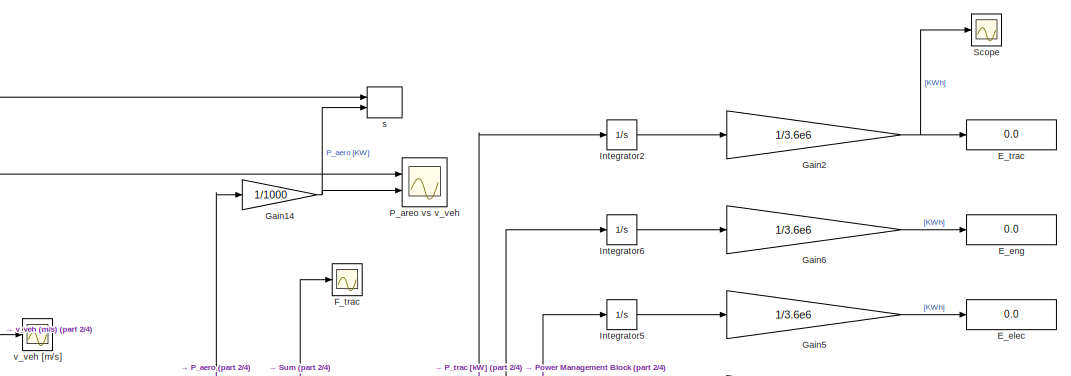
[diagram: root canvas - part 1/4, top center region]
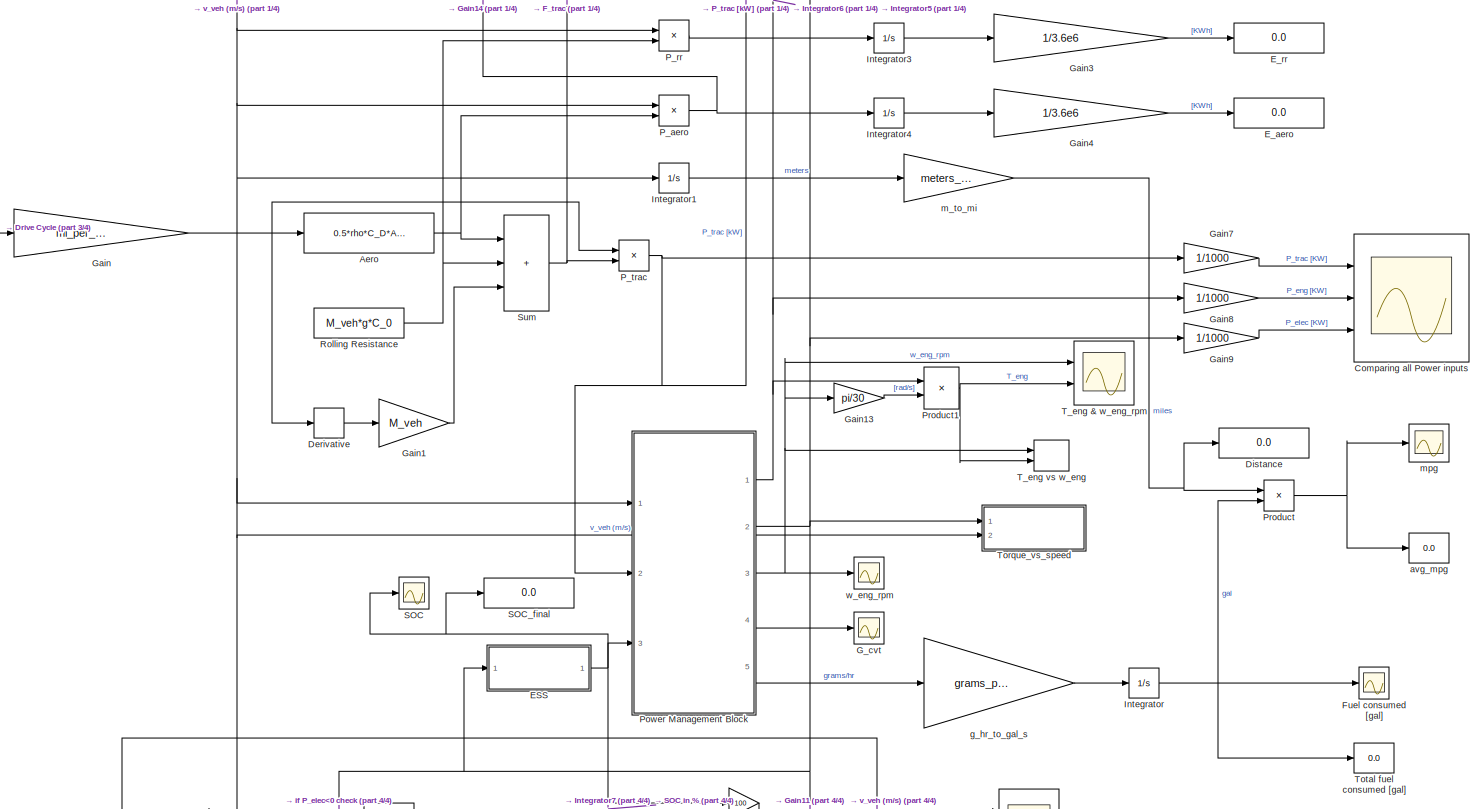
[diagram: root canvas - part 2/4, full width, middle band]
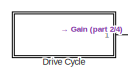
[diagram: root canvas - part 3/4, middle left region]
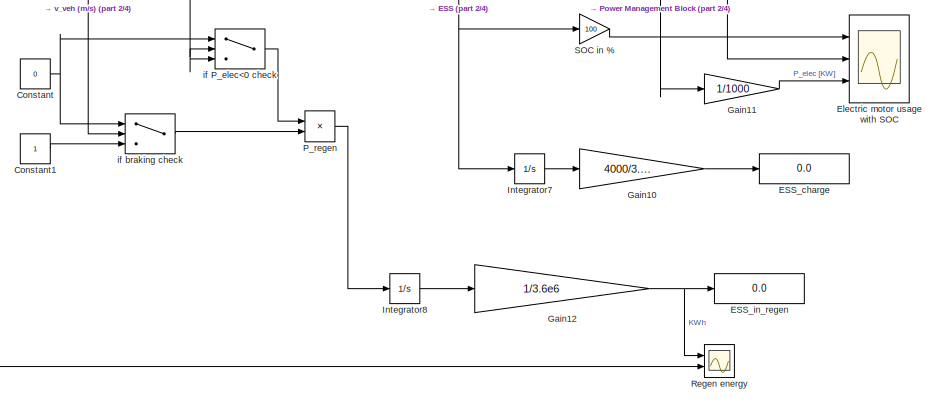
[diagram: root canvas - part 4/4, bottom center region]
MODEL slx_7052d2ca6dcd
KIND model
CONFIG AbsTol = auto
CONFIG EnableMultiTasking = off
CONFIG FixedStep = 0.1
CONFIG MaxStep = 0.2
CONFIG MinStep = 1e-20
CONFIG RelTol = 1e-3
CONFIG SampleTimeConstraint = Unconstrained
CONFIG SolverName = ode2
CONFIG StartTime = 0.0
CONFIG StopTime = 766
BLOCK [Fcn] Aero
  Expr = 0.5*rho*C_D*A_F*u(1)^2
BLOCK [Scope] Comparing all Power inputs
  Floating = off
  NumInputPorts = 3
  Ports = [3]
  ScopeSpecificationString = Simulink.scopes.TimeScopeBlockCfg('CurrentConfiguration', extmgr.ConfigurationSet(extmgr.Configuration('Core','General UI',true,'FigureColor',[0.972549019607843 0.972549019607843 0.972549019607843]),extmgr.Configuration('Core','Source UI',true),extmgr.Configuration('Sources','WiredSimulink',true,'DataLoggingVariableName','ScopeData4'),extmgr.Configuration('Visuals','Time Domain',true,'SerializedDi...<+3165ch>
BLOCK [Constant] Constant
  Value = 0
BLOCK [Constant] Constant1
BLOCK [Derivative] Derivative
BLOCK [Display] Distance
  Decimation = 1
  Ports = [1]
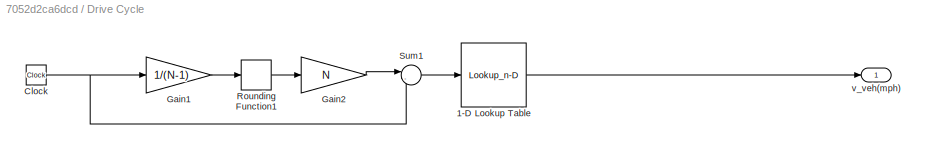
BLOCK [SubSystem] Drive Cycle
  Ports = [0, 1]
  RequestExecContextInheritance = off
BLOCK [Lookup_n-D] Drive Cycle/1-D Lookup Table
  BreakpointsForDimension1 = schedule(:,1)
  InputPortMap = u0
  InternalRulePriority = Speed
  InterpMethod = Cubic spline
  NumberOfTableDimensions = 1
  Ports = [1, 1]
  RndMeth = Simplest
  Table = schedule(:,2)
BLOCK [Clock] Drive Cycle/Clock
BLOCK [Gain] Drive Cycle/Gain1
  Gain = 1/(N-1)
BLOCK [Gain] Drive Cycle/Gain2
  Gain = N
BLOCK [Rounding] Drive Cycle/Rounding Function1
BLOCK [Sum] Drive Cycle/Sum1
  Inputs = |-+
  Ports = [2, 1]
BLOCK [Outport] Drive Cycle/v_veh(mph)
  VectorParamsAs1DForOutWhenUnconnected = off
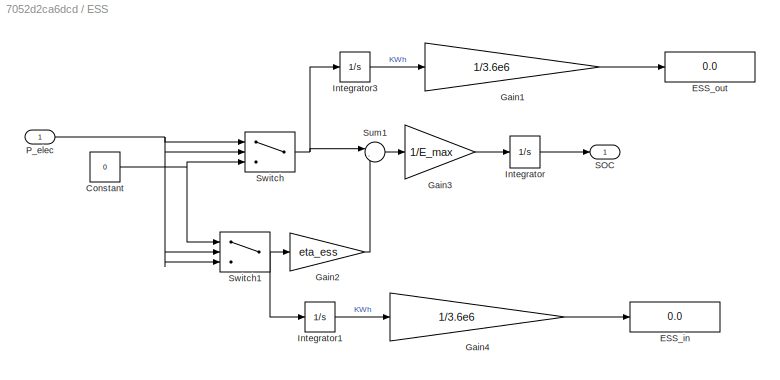
BLOCK [SubSystem] ESS
  Ports = [1, 1]
  RequestExecContextInheritance = off
BLOCK [Constant] ESS/Constant
  Value = 0
BLOCK [Display] ESS/ESS_in
  Decimation = 1
  Ports = [1]
BLOCK [Display] ESS/ESS_out
  Decimation = 1
  Ports = [1]
BLOCK [Gain] ESS/Gain1
  Gain = 1/3.6e6
BLOCK [Gain] ESS/Gain2
  Gain = eta_ess
BLOCK [Gain] ESS/Gain3
  Gain = 1/E_max
  OutDataTypeStr = fixdt('double', 'DataTypeOverride', 'Off')
BLOCK [Gain] ESS/Gain4
  Gain = 1/3.6e6
BLOCK [Integrator] ESS/Integrator
  InitialCondition = SOC_init
  LimitOutput = on
  LowerSaturationLimit = 0
  Ports = [1, 1]
  UpperSaturationLimit = 1
BLOCK [Integrator] ESS/Integrator1
  Ports = [1, 1]
BLOCK [Integrator] ESS/Integrator3
  Ports = [1, 1]
BLOCK [Inport] ESS/P_elec
BLOCK [Outport] ESS/SOC
  VectorParamsAs1DForOutWhenUnconnected = off
BLOCK [Sum] ESS/Sum1
  Inputs = |--
  Ports = [2, 1]
BLOCK [Switch] ESS/Switch
  InputSameDT = off
  OutDataTypeStr = double
  SaturateOnIntegerOverflow = off
BLOCK [Switch] ESS/Switch1
  InputSameDT = off
  OutDataTypeStr = double
  SaturateOnIntegerOverflow = off
BLOCK [Display] ESS_charge
  Decimation = 1
  Ports = [1]
BLOCK [Display] ESS_in_regen
  Decimation = 1
  Ports = [1]
BLOCK [Display] E_aero
  Decimation = 1
  Ports = [1]
BLOCK [Display] E_elec
  Decimation = 1
  Ports = [1]
BLOCK [Display] E_eng
  Decimation = 1
  Ports = [1]
BLOCK [Display] E_rr
  Decimation = 1
  Ports = [1]
BLOCK [Display] E_trac
  Decimation = 1
  Ports = [1]
BLOCK [Scope] Electric motor usage with SOC
  Floating = off
  NumInputPorts = 3
  Ports = [3]
  ScopeSpecificationString = Simulink.scopes.TimeScopeBlockCfg('CurrentConfiguration', extmgr.ConfigurationSet(extmgr.Configuration('Core','General UI',true,'FigureColor',[0.972549019607843 0.972549019607843 0.972549019607843]),extmgr.Configuration('Core','Source UI',true),extmgr.Configuration('Sources','WiredSimulink',true,'DataLoggingVariableName','ScopeData3'),extmgr.Configuration('Visuals','Time Domain',true,'SerializedDi...<+3169ch>
BLOCK [Scope] F_trac
  Floating = off
  NumInputPorts = 1
  Ports = [1]
  ScopeSpecificationString = Simulink.scopes.TimeScopeBlockCfg('CurrentConfiguration', extmgr.ConfigurationSet(extmgr.Configuration('Core','General UI',true,'FigureColor',[1 1 1]),extmgr.Configuration('Core','Source UI',true),extmgr.Configuration('Sources','WiredSimulink',true,'DataLoggingVariableName','ScopeData1'),extmgr.Configuration('Visuals','Time Domain',true,'SerializedDisplays',{struct('MinYLimReal','-3853.8029','MaxY...<+1557ch>
BLOCK [Scope] Fuel consumed [gal]
  Floating = off
  NumInputPorts = 1
  Ports = [1]
  ScopeSpecificationString = Simulink.scopes.TimeScopeBlockCfg('CurrentConfiguration', extmgr.ConfigurationSet(extmgr.Configuration('Core','General UI',true,'FigureColor',[0.972549019607843 0.972549019607843 0.972549019607843]),extmgr.Configuration('Core','Source UI',true),extmgr.Configuration('Sources','WiredSimulink',true,'DataLoggingVariableName','ScopeData2'),extmgr.Configuration('Visuals','Time Domain',true,'SerializedDi...<+1639ch>
BLOCK [Scope] G_cvt
  Floating = off
  NumInputPorts = 1
  Ports = [1]
  ScopeSpecificationString = Simulink.scopes.TimeScopeBlockCfg('CurrentConfiguration', extmgr.ConfigurationSet(extmgr.Configuration('Core','General UI',true,'FigureColor',[0.972549019607843 0.972549019607843 0.972549019607843]),extmgr.Configuration('Core','Source UI',true),extmgr.Configuration('Sources','WiredSimulink',true,'DataLoggingVariableName','ScopeData4'),extmgr.Configuration('Visuals','Time Domain',true,'SerializedDi...<+1691ch>
BLOCK [Gain] Gain
  Gain = mi_per_hr_to_m_per_s
BLOCK [Gain] Gain1
  Gain = M_veh
BLOCK [Gain] Gain10
  Gain = 4000/3.6e6
BLOCK [Gain] Gain11
  Gain = 1/1000
BLOCK [Gain] Gain12
  Gain = 1/3.6e6
BLOCK [Gain] Gain13
  Gain = pi/30
BLOCK [Gain] Gain14
  Gain = 1/1000
BLOCK [Gain] Gain2
  Gain = 1/3.6e6
BLOCK [Gain] Gain3
  Gain = 1/3.6e6
BLOCK [Gain] Gain4
  Gain = 1/3.6e6
BLOCK [Gain] Gain5
  Gain = 1/3.6e6
BLOCK [Gain] Gain6
  Gain = 1/3.6e6
BLOCK [Gain] Gain7
  Gain = 1/1000
BLOCK [Gain] Gain8
  Gain = 1/1000
BLOCK [Gain] Gain9
  Gain = 1/1000
BLOCK [Integrator] Integrator
  Ports = [1, 1]
BLOCK [Integrator] Integrator1
  Ports = [1, 1]
BLOCK [Integrator] Integrator2
  Ports = [1, 1]
BLOCK [Integrator] Integrator3
  Ports = [1, 1]
BLOCK [Integrator] Integrator4
  Ports = [1, 1]
BLOCK [Integrator] Integrator5
  Ports = [1, 1]
BLOCK [Integrator] Integrator6
  Ports = [1, 1]
BLOCK [Integrator] Integrator7
  Ports = [1, 1]
BLOCK [Integrator] Integrator8
  Ports = [1, 1]
BLOCK [Product] P_aero 
  Ports = [2, 1]
BLOCK [Scope] P_areo vs v_veh
  Floating = off
  NumInputPorts = 2
  Ports = [2]
  ScopeSpecificationString = Simulink.scopes.TimeScopeBlockCfg('CurrentConfiguration', extmgr.ConfigurationSet(extmgr.Configuration('Core','General UI',true,'FigureColor',[0.972549019607843 0.972549019607843 0.972549019607843]),extmgr.Configuration('Core','Source UI',true),extmgr.Configuration('Sources','WiredSimulink',true,'DataLoggingVariableName','ScopeData3'),extmgr.Configuration('Visuals','Time Domain',true,'SerializedDi...<+2378ch>
BLOCK [Product] P_regen
  Ports = [2, 1]
BLOCK [Product] P_rr 
  Ports = [2, 1]
BLOCK [Product] P_trac
  Ports = [2, 1]
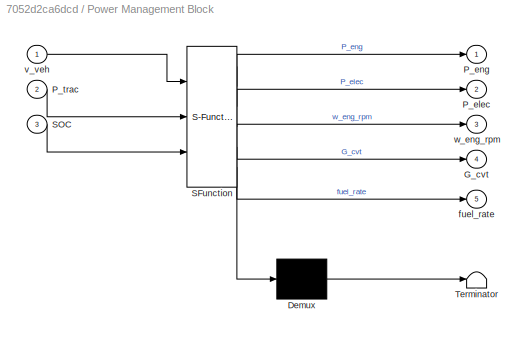
BLOCK [SubSystem] Power Management Block
  ErrorFcn = Stateflow.Translate.translate
  PermitHierarchicalResolution = ExplicitOnly
  Ports = [3, 5]
  RequestExecContextInheritance = off
  SFBlockType = MATLAB Function
  TreatAsAtomicUnit = on
BLOCK [Demux] Power Management Block/ Demux 
  Outputs = 1
  Ports = [1, 1]
BLOCK [S-Function] Power Management Block/ SFunction 
  EnableBusSupport = on
  FunctionName = sf_sfun
  Parameters = eng_map,param
  PortCounts = [3 6]
  Ports = [3, 6]
  SFcnIsStateOwnerBlock = off
  SFunctionDeploymentMode = off
  Tag = Stateflow S-Function 2
BLOCK [Terminator] Power Management Block/ Terminator 
BLOCK [Outport] Power Management Block/G_cvt
  Port = 4
  VectorParamsAs1DForOutWhenUnconnected = off
BLOCK [Outport] Power Management Block/P_elec
  Port = 2
  VectorParamsAs1DForOutWhenUnconnected = off
BLOCK [Outport] Power Management Block/P_eng
  VectorParamsAs1DForOutWhenUnconnected = off
BLOCK [Inport] Power Management Block/P_trac
  Port = 2
BLOCK [Inport] Power Management Block/SOC
  Port = 3
BLOCK [Outport] Power Management Block/fuel_rate
  Port = 5
  VectorParamsAs1DForOutWhenUnconnected = off
BLOCK [Inport] Power Management Block/v_veh
BLOCK [Outport] Power Management Block/w_eng_rpm
  Port = 3
  VectorParamsAs1DForOutWhenUnconnected = off
BLOCK [Product] Product
  Inputs = */
  Ports = [2, 1]
BLOCK [Product] Product1
  Inputs = */
  Ports = [2, 1]
BLOCK [Scope] Regen energy
  Floating = off
  NumInputPorts = 2
  Ports = [2]
  ScopeSpecificationString = Simulink.scopes.TimeScopeBlockCfg('CurrentConfiguration', extmgr.ConfigurationSet(extmgr.Configuration('Core','General UI',true,'FigureColor',[0.972549019607843 0.972549019607843 0.972549019607843]),extmgr.Configuration('Core','Source UI',true),extmgr.Configuration('Sources','WiredSimulink',true,'DataLoggingVariableName','ScopeData2'),extmgr.Configuration('Visuals','Time Domain',true,'SerializedDi...<+2370ch>
BLOCK [Constant] Rolling Resistance
  Value = M_veh*g*C_0
BLOCK [Scope] SOC
  Floating = off
  NumInputPorts = 1
  Ports = [1]
  ScopeSpecificationString = Simulink.scopes.TimeScopeBlockCfg('CurrentConfiguration', extmgr.ConfigurationSet(extmgr.Configuration('Core','General UI',true,'FigureColor',[0.972549019607843 0.972549019607843 0.972549019607843]),extmgr.Configuration('Core','Source UI',true),extmgr.Configuration('Sources','WiredSimulink',true,'DataLoggingVariableName','ScopeData1'),extmgr.Configuration('Visuals','Time Domain',true,'SerializedDi...<+1639ch>
BLOCK [Gain] SOC in %
  Gain = 100
BLOCK [Display] SOC_final
  Decimation = 1
  Ports = [1]
BLOCK [Scope] Scope
  Floating = off
  NumInputPorts = 1
  Ports = [1]
  ScopeSpecificationString = Simulink.scopes.TimeScopeBlockCfg('CurrentConfiguration', extmgr.ConfigurationSet(extmgr.Configuration('Core','General UI',true,'FigureColor',[1 1 1]),extmgr.Configuration('Core','Source UI',true),extmgr.Configuration('Sources','WiredSimulink',true,'DataLoggingVariableName','ScopeData2'),extmgr.Configuration('Visuals','Time Domain',true,'SerializedDisplays',{struct('MinYLimReal','-0.25406','MaxYLi...<+1614ch>
BLOCK [Sum] Sum
  IconShape = rectangular
  Inputs = +++
  Ports = [3, 1]
BLOCK [Scope] T_eng & w_eng_rpm
  Floating = off
  NumInputPorts = 2
  Ports = [2]
  ScopeSpecificationString = Simulink.scopes.TimeScopeBlockCfg('CurrentConfiguration', extmgr.ConfigurationSet(extmgr.Configuration('Core','General UI',true,'FigureColor',[0.972549019607843 0.972549019607843 0.972549019607843]),extmgr.Configuration('Core','Source UI',true),extmgr.Configuration('Sources','WiredSimulink',true,'DataLoggingVariableName','ScopeData5'),extmgr.Configuration('Visuals','Time Domain',true,'SerializedDi...<+2404ch>
BLOCK [Record] T_eng vs w_eng
  CompatibilityTag = XY
  FileSettingsInternal = {"entries":[{"content":{"excelSettings":{"content":{},"type":"Streamout.ExcelSettings"}},"type":"Streamout.FileSettingStorage","uuid":"e8810c02-a781-440f-a0aa-6ea0337eb554"}],"packageUris":["http://schema.mathworks.com/mf0/streamout_blocks/R2020a"],"version":"1.0"}
  Layout = [1 1]
  Ports = [2]
  SignalsInternal = {"entries":[{"content":{"signals":[{"content":{"blockPath":["first/T_eng vs w_eng"],"channel":[],"dimensions":[1],"domain":"first/T_eng vs w_eng","lineColor":"#a2142f","plots":[],"port":1,"sid":[""],"signalID":353,"signalName":"w_eng_rpm"},"type":"RecordBlkView.Signal","uuid":"3905639b-b552-46c2-b388-1891f00bc392"},{"content":{"blockPath":["first/T_eng vs w_eng"],"channel":[],"dimensions":[1],"dom...<+371ch>
  VisualizationBindings = {"xyplotplugin":{"info":[{"series":[],"subplotID":1}]}}
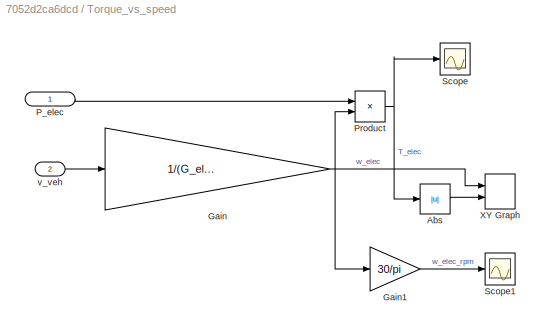
BLOCK [SubSystem] Torque_vs_speed
  Ports = [2]
  RequestExecContextInheritance = off
BLOCK [Abs] Torque_vs_speed/Abs
  SaturateOnIntegerOverflow = off
BLOCK [Gain] Torque_vs_speed/Gain
  Gain = 1/(G_elec * G_diff * r_wheel)
BLOCK [Gain] Torque_vs_speed/Gain1
  Gain = 30/pi
BLOCK [Inport] Torque_vs_speed/P_elec
BLOCK [Product] Torque_vs_speed/Product
  Inputs = */
  Ports = [2, 1]
BLOCK [Scope] Torque_vs_speed/Scope
  Floating = off
  NumInputPorts = 1
  Ports = [1]
  ScopeSpecificationString = Simulink.scopes.TimeScopeBlockCfg('CurrentConfiguration', extmgr.ConfigurationSet(extmgr.Configuration('Core','General UI',true,'FigureColor',[1 1 1]),extmgr.Configuration('Core','Source UI',true),extmgr.Configuration('Sources','WiredSimulink',true,'DataLoggingVariableName','ScopeData1'),extmgr.Configuration('Visuals','Time Domain',true,'SerializedDisplays',{struct('MinYLimReal','-286.29412','MaxY...<+1650ch>
BLOCK [Scope] Torque_vs_speed/Scope1
  Floating = off
  NumInputPorts = 1
  Ports = [1]
  ScopeSpecificationString = Simulink.scopes.TimeScopeBlockCfg('CurrentConfiguration', extmgr.ConfigurationSet(extmgr.Configuration('Core','General UI',true,'FigureColor',[1 1 1]),extmgr.Configuration('Core','Source UI',true),extmgr.Configuration('Sources','WiredSimulink',true,'DataLoggingVariableName','ScopeData3'),extmgr.Configuration('Visuals','Time Domain',true,'SerializedDisplays',{struct('MinYLimReal','-600.59495','MaxY...<+1633ch>
BLOCK [Record] Torque_vs_speed/XY Graph
  CompatibilityTag = XY
  FileSettingsInternal = {"entries":[{"content":{"excelSettings":{"content":{},"type":"Streamout.ExcelSettings"}},"type":"Streamout.FileSettingStorage","uuid":"02627308-9a79-425d-aeec-e9e94ddd7ae0"}],"packageUris":["http://schema.mathworks.com/mf0/streamout_blocks/R2020a"],"version":"1.0"}
  Layout = [1 1]
  Ports = [2]
  SignalsInternal = {"entries":[{"content":{"signals":[{"content":{"blockPath":["first/Torque_vs_speed/XY Graph"],"channel":[],"dimensions":[1],"domain":"first/Torque_vs_speed/XY Graph","lineColor":"#a2142f","plots":[1],"port":1,"sid":[""],"signalID":361,"signalName":"w_elec"},"type":"RecordBlkView.Signal","uuid":"d0663536-23cd-4689-8d14-dfc1729d4cf1"},{"content":{"blockPath":["first/Torque_vs_speed/XY Graph"],"chann...<+408ch>
  VisualizationBindings = {"xyplotplugin":{"info":[{"series":[{"bindingParametersList":[{"parameter":"X-Axis","signalID":361,"signalName":"w_elec"},{"parameter":"Y-Axis","signalID":365,"signalName":"Abs"}],"seriesID":10917}],"subplotID":1}]}}
  st = -1
BLOCK [Inport] Torque_vs_speed/v_veh
  Port = 2
BLOCK [Display] Total fuel consumed [gal]
  Decimation = 1
  Ports = [1]
BLOCK [Display] avg_mpg
  Decimation = 1
  Ports = [1]
BLOCK [Gain] g_hr_to_gal_s
  Gain = grams_per_hr_to_gal_per_s
BLOCK [Switch] if P_elec<0 check
  InputSameDT = off
  OutDataTypeStr = double
  SaturateOnIntegerOverflow = off
BLOCK [Switch] if braking check
  InputSameDT = off
  OutDataTypeStr = double
  SaturateOnIntegerOverflow = off
BLOCK [Gain] m_to_mi
  Gain = meters_to_mi
BLOCK [Scope] mpg
  Floating = off
  NumInputPorts = 1
  Ports = [1]
  ScopeSpecificationString = Simulink.scopes.TimeScopeBlockCfg('CurrentConfiguration', extmgr.ConfigurationSet(extmgr.Configuration('Core','General UI',true,'FigureColor',[0.972549019607843 0.972549019607843 0.972549019607843]),extmgr.Configuration('Core','Source UI',true),extmgr.Configuration('Sources','WiredSimulink',true,'DataLoggingVariableName','ScopeData1'),extmgr.Configuration('Visuals','Time Domain',true,'SerializedDi...<+1655ch>
BLOCK [Record] s
  CompatibilityTag = XY
  FileSettingsInternal = {"entries":[{"content":{"excelSettings":{"content":{},"type":"Streamout.ExcelSettings"}},"type":"Streamout.FileSettingStorage","uuid":"82f50792-d557-49ae-9ff4-48ee91707643"}],"packageUris":["http://schema.mathworks.com/mf0/streamout_blocks/R2020a"],"version":"1.0"}
  Layout = [1 1]
  Ports = [2]
  SignalsInternal = {"entries":[{"content":{"signals":[{"content":{"blockPath":["first/s"],"channel":[],"dimensions":[1],"domain":"first/s","lineColor":"#64d413","plots":[],"port":1,"sid":[""],"signalID":369,"signalName":"v_veh (m/s)"},"type":"RecordBlkView.Signal","uuid":"3b5b11c4-51da-4adc-b968-fa1dcc70d426"},{"content":{"blockPath":["first/s"],"channel":[],"dimensions":[1],"domain":"first/s","lineColor":"#ff13a6",...<+327ch>
  VisualizationBindings = {"xyplotplugin":{"info":[{"series":[],"subplotID":1}]}}
BLOCK [Scope] v_veh [m//s]
  Floating = off
  NumInputPorts = 1
  Ports = [1]
  ScopeSpecificationString = Simulink.scopes.TimeScopeBlockCfg('CurrentConfiguration', extmgr.ConfigurationSet(extmgr.Configuration('Core','General UI',true,'FigureColor',[0.972549019607843 0.972549019607843 0.972549019607843]),extmgr.Configuration('Core','Source UI',true),extmgr.Configuration('Sources','WiredSimulink',true,'DataLoggingVariableName','ScopeData1'),extmgr.Configuration('Visuals','Time Domain',true,'SerializedDi...<+1645ch>
BLOCK [Scope] w_eng_rpm
  Floating = off
  NumInputPorts = 1
  Ports = [1]
  ScopeSpecificationString = Simulink.scopes.TimeScopeBlockCfg('CurrentConfiguration', extmgr.ConfigurationSet(extmgr.Configuration('Core','General UI',true,'FigureColor',[0.972549019607843 0.972549019607843 0.972549019607843]),extmgr.Configuration('Core','Source UI',true),extmgr.Configuration('Sources','WiredSimulink',true,'DataLoggingVariableName','ScopeData3'),extmgr.Configuration('Visuals','Time Domain',true,'SerializedDi...<+1675ch>
NET Aero:1 -> P_aero :2, Sum:1
LINE Constant1:1 -> if braking check:3
NET Constant:1 -> if P_elec<0 check:1, if braking check:1
LINE Derivative:1 -> Gain1:1
LINE Drive Cycle/1-D Lookup Table:1 -> Drive Cycle/v_veh(mph):1
NET Drive Cycle/Clock:1 -> Drive Cycle/Gain1:1, Drive Cycle/Sum1:2
LINE Drive Cycle/Gain1:1 -> Drive Cycle/Rounding Function1:1
LINE Drive Cycle/Gain2:1 -> Drive Cycle/Sum1:1
LINE Drive Cycle/Rounding Function1:1 -> Drive Cycle/Gain2:1
LINE Drive Cycle/Sum1:1 -> Drive Cycle/1-D Lookup Table:1
LINE Drive Cycle:1 -> Gain:1
NET ESS/Constant:1 -> ESS/Switch1:1, ESS/Switch:3
LINE ESS/Gain1:1 -> ESS/ESS_out:1
LINE ESS/Gain2:1 -> ESS/Sum1:2
LINE ESS/Gain3:1 -> ESS/Integrator:1
LINE ESS/Gain4:1 -> ESS/ESS_in:1
LINE ESS/Integrator1:1 -> ESS/Gain4:1
LINE ESS/Integrator3:1 -> ESS/Gain1:1
LINE ESS/Integrator:1 -> ESS/SOC:1
NET ESS/P_elec:1 -> ESS/Switch1:2, ESS/Switch1:3, ESS/Switch:1, ESS/Switch:2
LINE ESS/Sum1:1 -> ESS/Gain3:1
NET ESS/Switch1:1 -> ESS/Gain2:1, ESS/Integrator1:1
NET ESS/Switch:1 -> ESS/Integrator3:1, ESS/Sum1:1
NET ESS:1 -> Integrator7:1, Power Management Block:3, SOC in %:1, SOC:1, SOC_final:1
LINE Gain10:1 -> ESS_charge:1
LINE Gain11:1 -> Electric motor usage with SOC:3
NET Gain12:1 -> ESS_in_regen:1, Regen energy:1
LINE Gain13:1 -> Product1:2
NET Gain14:1 -> P_areo vs v_veh:2, s:2
LINE Gain1:1 -> Sum:3
NET Gain2:1 -> E_trac:1, Scope:1
LINE Gain3:1 -> E_rr:1
LINE Gain4:1 -> E_aero:1
LINE Gain5:1 -> E_elec:1
LINE Gain6:1 -> E_eng:1
LINE Gain7:1 -> Comparing all Power inputs:1
LINE Gain8:1 -> Comparing all Power inputs:2
LINE Gain9:1 -> Comparing all Power inputs:3
NET Gain:1 -> Aero:1, Derivative:1, Electric motor usage with SOC:2, Integrator1:1, P_aero :1, P_areo vs v_veh:1, P_rr :1, P_trac:1, Power Management Block:1, Regen energy:2, Torque_vs_speed:2, if braking check:2, s:1, v_veh [m//s]:1
LINE Integrator1:1 -> m_to_mi:1
LINE Integrator2:1 -> Gain2:1
LINE Integrator3:1 -> Gain3:1
LINE Integrator4:1 -> Gain4:1
LINE Integrator5:1 -> Gain5:1
LINE Integrator6:1 -> Gain6:1
LINE Integrator7:1 -> Gain10:1
LINE Integrator8:1 -> Gain12:1
NET Integrator:1 -> Fuel consumed [gal]:1, Product:2, Total fuel consumed [gal]:1
NET P_aero :1 -> Gain14:1, Integrator4:1
LINE P_regen:1 -> Integrator8:1
LINE P_rr :1 -> Integrator3:1
NET P_trac:1 -> Gain7:1, Integrator2:1, Power Management Block:2
NET Power Management Block:1 -> Gain8:1, Integrator6:1, Product1:1
NET Power Management Block:2 -> ESS:1, Gain11:1, Gain9:1, Integrator5:1, Torque_vs_speed:1, if P_elec<0 check:2, if P_elec<0 check:3
NET Power Management Block:3 -> Gain13:1, T_eng & w_eng_rpm:1, T_eng vs w_eng:1, w_eng_rpm:1
LINE Power Management Block:4 -> G_cvt:1
LINE Power Management Block:5 -> g_hr_to_gal_s:1
NET Product1:1 -> T_eng & w_eng_rpm:2, T_eng vs w_eng:2
NET Product:1 -> avg_mpg:1, mpg:1
NET Rolling Resistance:1 -> P_rr :2, Sum:2
LINE SOC in %:1 -> Electric motor usage with SOC:1
NET Sum:1 -> F_trac:1, P_trac:2
LINE Torque_vs_speed/Abs:1 -> Torque_vs_speed/XY Graph:2
LINE Torque_vs_speed/Gain1:1 -> Torque_vs_speed/Scope1:1
NET Torque_vs_speed/Gain:1 -> Torque_vs_speed/Gain1:1, Torque_vs_speed/Product:2, Torque_vs_speed/XY Graph:1
LINE Torque_vs_speed/P_elec:1 -> Torque_vs_speed/Product:1
NET Torque_vs_speed/Product:1 -> Torque_vs_speed/Abs:1, Torque_vs_speed/Scope:1
LINE Torque_vs_speed/v_veh:1 -> Torque_vs_speed/Gain:1
LINE g_hr_to_gal_s:1 -> Integrator:1
LINE if P_elec<0 check:1 -> P_regen:1
LINE if braking check:1 -> P_regen:2
NET m_to_mi:1 -> Distance:1, Product:1
note: NET lines group one-source signal fan-out (src -> all destinations, sorted); 1:1 wires keep LINE
CHART Power Management Block states=1 transitions=1
  STATE_LABEL 'eML_blk_kernel()'
  STATE_LABEL 'SCRIPT:\nfunction [P_eng, P_elec, w_eng_rpm, G_cvt, fuel_rate] = fcn(v_veh, P_trac, SOC, param, eng_map)\n%#codegen\n%inputs:\n    % v_veh, m/s\n    % P_trac, W\n    % SOC\n    % param, structure of parameters\n    % eng_map\n\n% outputs:\n    %   P_gen, P_elec in W\n    %   w_eng_rpm, rpm\n    %   G_cvt (cvt ratio)\n    %   Fuel rate, grams/hr\n\nv_veh_min = param.v_veh_min;    % minimum vehicle speed for engine...<+2673ch>'
CHART  states=0 transitions=0
